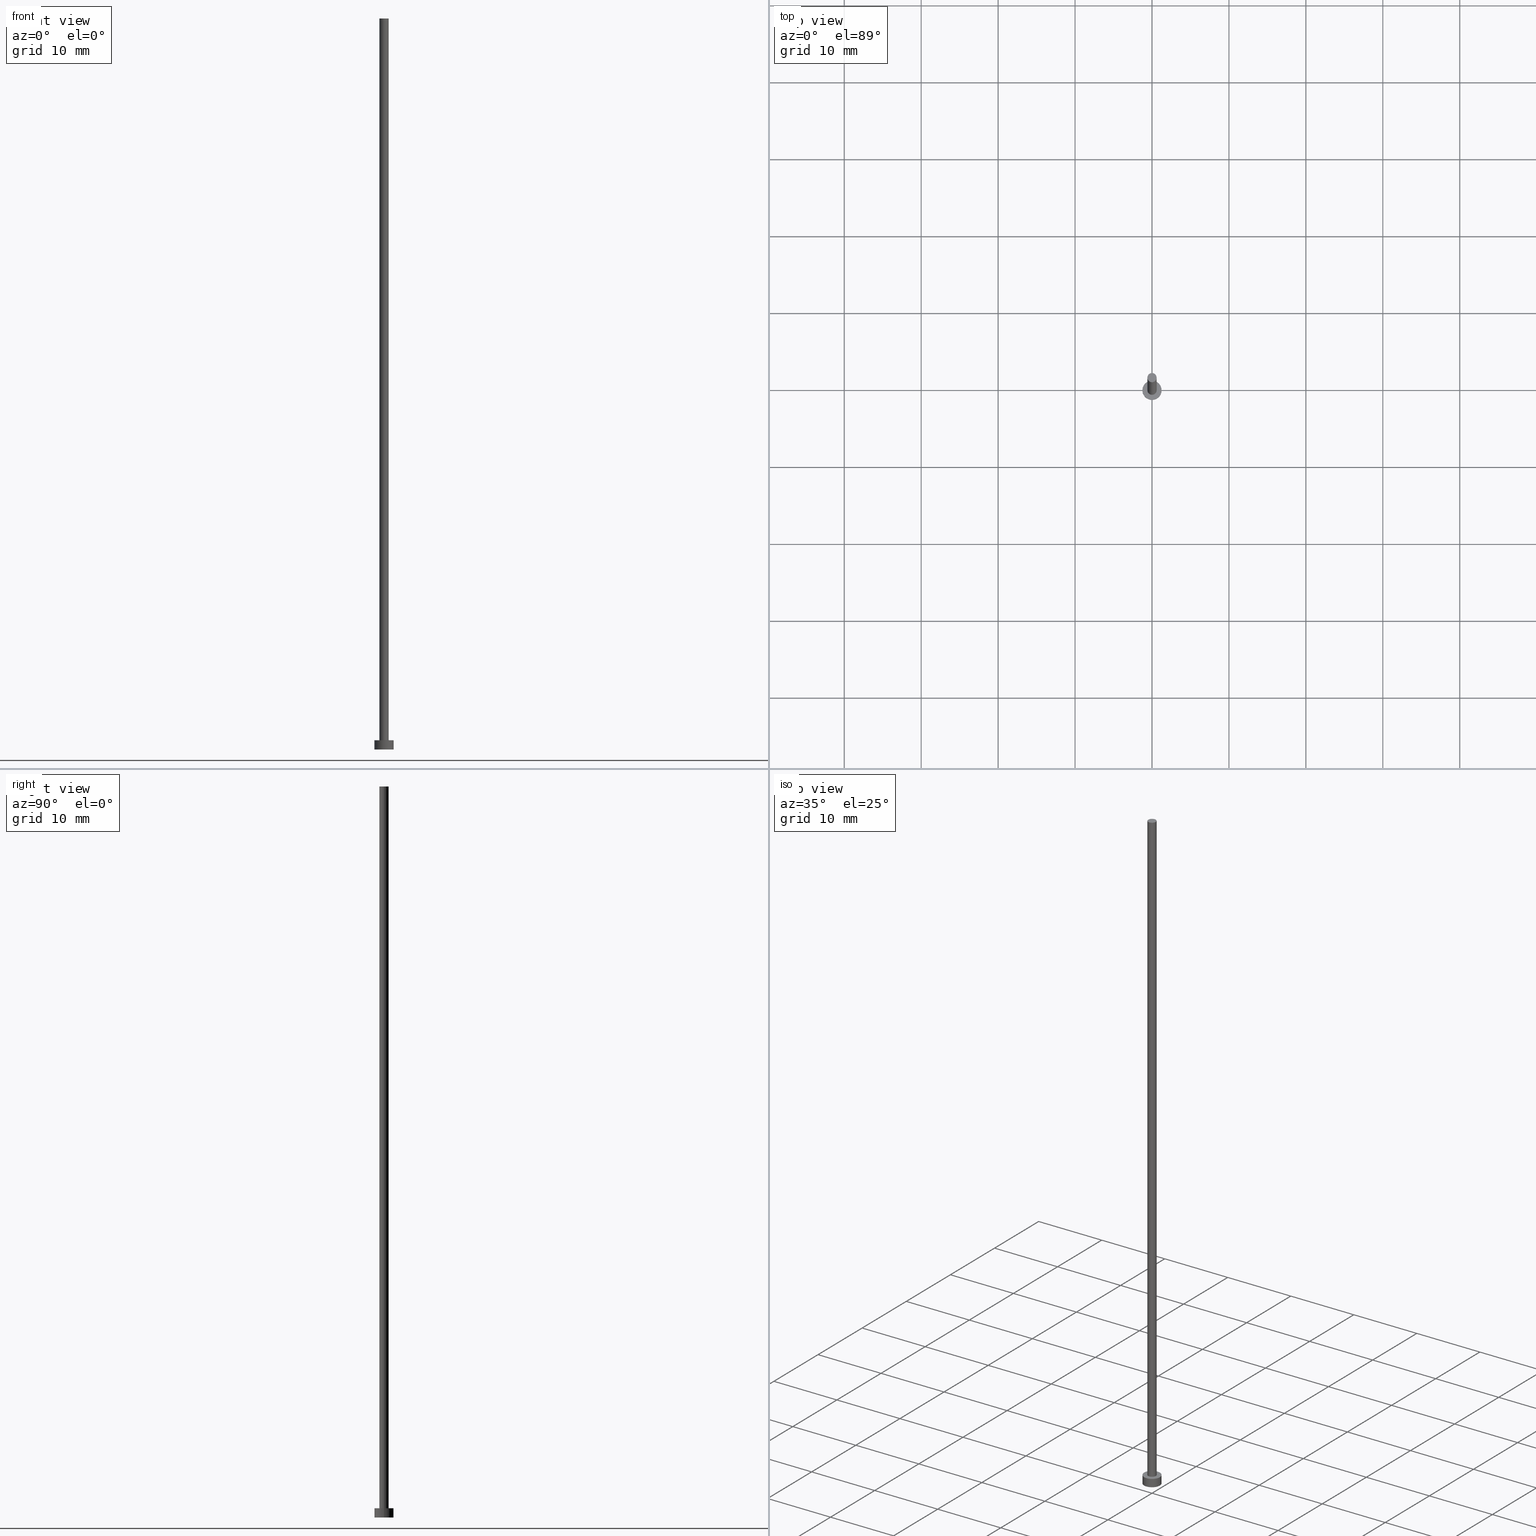
[diagram: canonical four-view strip — front | top / right | iso, engineering-drawing reading convention]
A machine part, canonical four-view strip (front | top / right | iso — engineering-drawing reading convention). The complete STEP part file that produces these views, byte-faithful:
ISO-10303-21;
HEADER;
FILE_DESCRIPTION (( 'STEP AP203' ),
    '1' );
FILE_NAME ('b17c.STEP',
    '2023-09-09T13:15:18',
    ( '' ),
    ( '' ),
    'SwSTEP 2.0',
    'SolidWorks 2019',
    '' );
FILE_SCHEMA (( 'CONFIG_CONTROL_DESIGN' ));
ENDSEC;

DATA;
#1 = CC_DESIGN_APPROVAL ( #51, ( #58 ) ) ;
#2 = APPROVAL ( #142, 'NEUR�EN�' ) ;
#3 = CARTESIAN_POINT ( 'NONE',  ( -0.5999999999999999778, 0.000000000000000000, 95.00000000000000000 ) ) ;
#4 = DIRECTION ( 'NONE',  ( 0.000000000000000000, 0.000000000000000000, 1.000000000000000000 ) ) ;
#5 = AXIS2_PLACEMENT_3D ( 'NONE', #234, #158, #54 ) ;
#6 = EDGE_CURVE ( 'NONE', #240, #174, #118, .T. ) ;
#7 = DIRECTION ( 'NONE',  ( 1.000000000000000000, 0.000000000000000000, -0.000000000000000000 ) ) ;
#8 = VERTEX_POINT ( 'NONE', #66 ) ;
#9 = CYLINDRICAL_SURFACE ( 'NONE', #42, 1.250000000000000000 ) ;
#10 = EDGE_LOOP ( 'NONE', ( #55, #75 ) ) ;
#11 = PERSON_AND_ORGANIZATION ( #202, #145 ) ;
#12 = APPROVAL_ROLE ( '' ) ;
#13 = LOCAL_TIME ( 15, 15, 18.00000000000000000, #143 ) ;
#14 = CALENDAR_DATE ( 2023, 9, 9 ) ;
#15 = CC_DESIGN_PERSON_AND_ORGANIZATION_ASSIGNMENT ( #194, #20, ( #93 ) ) ;
#16 = ORIENTED_EDGE ( 'NONE', *, *, #45, .F. ) ;
#17 = CALENDAR_DATE ( 2023, 9, 9 ) ;
#18 = CIRCLE ( 'NONE', #171, 0.5999999999999999778 ) ;
#19 = AXIS2_PLACEMENT_3D ( 'NONE', #91, #4, #201 ) ;
#20 = PERSON_AND_ORGANIZATION_ROLE ( 'creator' ) ;
#21 = ORIENTED_EDGE ( 'NONE', *, *, #6, .F. ) ;
#22 = APPROVAL_STATUS ( 'not_yet_approved' ) ;
#23 = DIRECTION ( 'NONE',  ( 0.000000000000000000, 0.000000000000000000, 1.000000000000000000 ) ) ;
#24 = APPROVAL ( #222, 'NEUR�EN�' ) ;
#25 = DIRECTION ( 'NONE',  ( 1.000000000000000000, 0.000000000000000000, -0.000000000000000000 ) ) ;
#26 = SHAPE_DEFINITION_REPRESENTATION ( #221, #128 ) ;
#27 = CARTESIAN_POINT ( 'NONE',  ( 0.000000000000000000, 0.000000000000000000, 1.199999999999999956 ) ) ;
#28 = DIRECTION ( 'NONE',  ( 1.000000000000000000, 0.000000000000000000, 0.000000000000000000 ) ) ;
#29 = CARTESIAN_POINT ( 'NONE',  ( 1.250000000000000000, 1.530808498934191571E-16, 1.199999999999999956 ) ) ;
#30 = CIRCLE ( 'NONE', #110, 0.5999999999999999778 ) ;
#31 = CARTESIAN_POINT ( 'NONE',  ( 0.000000000000000000, 0.000000000000000000, 1.199999999999999956 ) ) ;
#32 = ORIENTED_EDGE ( 'NONE', *, *, #205, .T. ) ;
#33 = APPLICATION_PROTOCOL_DEFINITION ( 'international standard', 'config_control_design', 1994, #131 ) ;
#34 = VERTEX_POINT ( 'NONE', #229 ) ;
#35 = PERSON_AND_ORGANIZATION ( #202, #145 ) ;
#36 = MANIFOLD_SOLID_BREP ( 'P�idat vysunut�m3', #243 ) ;
#37 = CC_DESIGN_PERSON_AND_ORGANIZATION_ASSIGNMENT ( #191, #100, ( #53 ) ) ;
#38 = EDGE_LOOP ( 'NONE', ( #134, #207, #173, #175 ) ) ;
#39 = APPROVAL_DATE_TIME ( #177, #24 ) ;
#40 = ORIENTED_EDGE ( 'NONE', *, *, #6, .T. ) ;
#41 = CIRCLE ( 'NONE', #178, 1.250000000000000000 ) ;
#42 = AXIS2_PLACEMENT_3D ( 'NONE', #154, #74, #49 ) ;
#43 = CARTESIAN_POINT ( 'NONE',  ( 0.5999999999999999778, 7.347880794884117764E-17, 95.00000000000000000 ) ) ;
#44 = CARTESIAN_POINT ( 'NONE',  ( 0.000000000000000000, 0.000000000000000000, 95.00000000000000000 ) ) ;
#45 = EDGE_CURVE ( 'NONE', #252, #226, #147, .T. ) ;
#46 = APPROVAL_DATE_TIME ( #215, #51 ) ;
#47 = DIRECTION ( 'NONE',  ( 1.000000000000000000, 0.000000000000000000, 0.000000000000000000 ) ) ;
#48 = EDGE_CURVE ( 'NONE', #164, #8, #213, .T. ) ;
#49 = DIRECTION ( 'NONE',  ( -1.000000000000000000, 0.000000000000000000, 0.000000000000000000 ) ) ;
#50 = DIRECTION ( 'NONE',  ( 0.000000000000000000, 0.000000000000000000, 1.000000000000000000 ) ) ;
#51 = APPROVAL ( #22, 'NEUR�EN�' ) ;
#52 = CARTESIAN_POINT ( 'NONE',  ( 0.000000000000000000, 0.000000000000000000, 0.000000000000000000 ) ) ;
#53 = PRODUCT_DEFINITION ( 'NEZN�M�', '', #93, #69 ) ;
#54 = DIRECTION ( 'NONE',  ( 1.000000000000000000, 0.000000000000000000, 0.000000000000000000 ) ) ;
#55 = ORIENTED_EDGE ( 'NONE', *, *, #96, .T. ) ;
#56 = CC_DESIGN_APPROVAL ( #24, ( #53 ) ) ;
#57 = VERTEX_POINT ( 'NONE', #248 ) ;
#58 = SECURITY_CLASSIFICATION ( '', '', #160 ) ;
#59 = ADVANCED_FACE ( 'NONE', ( #124 ), #251, .T. ) ;
#60 = ORIENTED_EDGE ( 'NONE', *, *, #120, .F. ) ;
#61 = CARTESIAN_POINT ( 'NONE',  ( 0.000000000000000000, 0.000000000000000000, 0.000000000000000000 ) ) ;
#62 = PRODUCT ( 'b17c', 'b17c', '', ( #94 ) ) ;
#63 = CALENDAR_DATE ( 2023, 9, 9 ) ;
#64 = DIRECTION ( 'NONE',  ( 1.000000000000000000, 0.000000000000000000, 0.000000000000000000 ) ) ;
#65 = DATE_AND_TIME ( #106, #13 ) ;
#66 = CARTESIAN_POINT ( 'NONE',  ( -1.250000000000000000, 0.000000000000000000, 1.199999999999999956 ) ) ;
#67 = ORIENTED_EDGE ( 'NONE', *, *, #96, .F. ) ;
#68 = CARTESIAN_POINT ( 'NONE',  ( 0.000000000000000000, 0.000000000000000000, 1.199999999999999956 ) ) ;
#69 = DESIGN_CONTEXT ( 'detailed design', #131, 'design' ) ;
#70 = CIRCLE ( 'NONE', #19, 1.250000000000000000 ) ;
#71 = DIRECTION ( 'NONE',  ( -1.000000000000000000, 0.000000000000000000, 0.000000000000000000 ) ) ;
#72 = FACE_OUTER_BOUND ( 'NONE', #77, .T. ) ;
#73 =( LENGTH_UNIT ( ) NAMED_UNIT ( * ) SI_UNIT ( .MILLI., .METRE. ) );
#74 = DIRECTION ( 'NONE',  ( -0.000000000000000000, -0.000000000000000000, -1.000000000000000000 ) ) ;
#75 = ORIENTED_EDGE ( 'NONE', *, *, #48, .T. ) ;
#76 =( GEOMETRIC_REPRESENTATION_CONTEXT ( 3 ) GLOBAL_UNCERTAINTY_ASSIGNED_CONTEXT ( ( #253 ) ) GLOBAL_UNIT_ASSIGNED_CONTEXT ( ( #73, #114, #165 ) ) REPRESENTATION_CONTEXT ( 'NONE', 'WORKASPACE' ) );
#77 = EDGE_LOOP ( 'NONE', ( #117, #159 ) ) ;
#78 = ORIENTED_EDGE ( 'NONE', *, *, #242, .T. ) ;
#79 = EDGE_LOOP ( 'NONE', ( #183, #21 ) ) ;
#80 = PERSON_AND_ORGANIZATION_ROLE ( 'design_owner' ) ;
#81 = APPROVAL_PERSON_ORGANIZATION ( #148, #2, #228 ) ;
#82 = EDGE_LOOP ( 'NONE', ( #97, #137, #40, #193 ) ) ;
#83 = PERSON_AND_ORGANIZATION ( #202, #145 ) ;
#84 = CALENDAR_DATE ( 2023, 9, 9 ) ;
#85 = CC_DESIGN_PERSON_AND_ORGANIZATION_ASSIGNMENT ( #11, #80, ( #62 ) ) ;
#86 = DIRECTION ( 'NONE',  ( -0.000000000000000000, -0.000000000000000000, -1.000000000000000000 ) ) ;
#87 = AXIS2_PLACEMENT_3D ( 'NONE', #224, #203, #204 ) ;
#88 = LINE ( 'NONE', #195, #151 ) ;
#89 = CARTESIAN_POINT ( 'NONE',  ( 0.000000000000000000, 0.000000000000000000, 1.199999999999999956 ) ) ;
#90 = CARTESIAN_POINT ( 'NONE',  ( 0.5999999999999999778, 7.347880794884117764E-17, 95.00000000000000000 ) ) ;
#91 = CARTESIAN_POINT ( 'NONE',  ( 0.000000000000000000, 0.000000000000000000, 0.000000000000000000 ) ) ;
#92 = AXIS2_PLACEMENT_3D ( 'NONE', #31, #186, #71 ) ;
#93 = PRODUCT_DEFINITION_FORMATION_WITH_SPECIFIED_SOURCE ( 'LIBOVOLN�', '', #62, .NOT_KNOWN. ) ;
#94 = MECHANICAL_CONTEXT ( 'NONE', #122, 'mechanical' ) ;
#95 = DIRECTION ( 'NONE',  ( -0.000000000000000000, -0.000000000000000000, -1.000000000000000000 ) ) ;
#96 = EDGE_CURVE ( 'NONE', #8, #164, #41, .T. ) ;
#97 = ORIENTED_EDGE ( 'NONE', *, *, #48, .F. ) ;
#98 = CARTESIAN_POINT ( 'NONE',  ( 1.250000000000000000, 1.530808498934191571E-16, 0.000000000000000000 ) ) ;
#99 = ORIENTED_EDGE ( 'NONE', *, *, #115, .T. ) ;
#100 = PERSON_AND_ORGANIZATION_ROLE ( 'creator' ) ;
#101 = APPROVAL_DATE_TIME ( #162, #2 ) ;
#102 = PERSON_AND_ORGANIZATION ( #202, #145 ) ;
#103 = DIRECTION ( 'NONE',  ( -0.000000000000000000, -0.000000000000000000, -1.000000000000000000 ) ) ;
#104 = ADVANCED_FACE ( 'NONE', ( #125, #150 ), #152, .T. ) ;
#105 = APPROVAL_ROLE ( '' ) ;
#106 = CALENDAR_DATE ( 2023, 9, 9 ) ;
#107 = EDGE_CURVE ( 'NONE', #164, #240, #88, .T. ) ;
#108 = EDGE_LOOP ( 'NONE', ( #236, #67, #99, #245 ) ) ;
#109 = PLANE ( 'NONE',  #185 ) ;
#110 = AXIS2_PLACEMENT_3D ( 'NONE', #161, #163, #64 ) ;
#111 = LOCAL_TIME ( 15, 15, 18.00000000000000000, #141 ) ;
#112 = CC_DESIGN_DATE_AND_TIME_ASSIGNMENT ( #244, #211, ( #53 ) ) ;
#113 = DIRECTION ( 'NONE',  ( 1.000000000000000000, 0.000000000000000000, -0.000000000000000000 ) ) ;
#114 =( NAMED_UNIT ( * ) PLANE_ANGLE_UNIT ( ) SI_UNIT ( $, .RADIAN. ) );
#115 = EDGE_CURVE ( 'NONE', #8, #174, #179, .T. ) ;
#116 = FACE_OUTER_BOUND ( 'NONE', #82, .T. ) ;
#117 = ORIENTED_EDGE ( 'NONE', *, *, #176, .T. ) ;
#118 = CIRCLE ( 'NONE', #170, 1.250000000000000000 ) ;
#119 = LOCAL_TIME ( 15, 15, 18.00000000000000000, #212 ) ;
#120 = EDGE_CURVE ( 'NONE', #226, #57, #30, .T. ) ;
#121 = DIRECTION ( 'NONE',  ( -0.000000000000000000, -0.000000000000000000, -1.000000000000000000 ) ) ;
#122 = APPLICATION_CONTEXT ( 'configuration controlled 3d designs of mechanical parts and assemblies' ) ;
#123 = DATE_TIME_ROLE ( 'classification_date' ) ;
#124 = FACE_OUTER_BOUND ( 'NONE', #38, .T. ) ;
#125 = FACE_BOUND ( 'NONE', #254, .T. ) ;
#126 = LINE ( 'NONE', #3, #208 ) ;
#127 = ADVANCED_FACE ( 'NONE', ( #216 ), #172, .T. ) ;
#128 = ADVANCED_BREP_SHAPE_REPRESENTATION ( 'b17c', ( #36, #87 ), #76 ) ;
#129 = CC_DESIGN_APPROVAL ( #2, ( #93 ) ) ;
#130 = DIRECTION ( 'NONE',  ( -1.000000000000000000, 0.000000000000000000, 0.000000000000000000 ) ) ;
#131 = APPLICATION_CONTEXT ( 'configuration controlled 3d designs of mechanical parts and assemblies' ) ;
#132 = FACE_OUTER_BOUND ( 'NONE', #108, .T. ) ;
#133 = DIRECTION ( 'NONE',  ( 0.000000000000000000, 0.000000000000000000, 1.000000000000000000 ) ) ;
#134 = ORIENTED_EDGE ( 'NONE', *, *, #225, .F. ) ;
#135 = AXIS2_PLACEMENT_3D ( 'NONE', #89, #231, #166 ) ;
#136 = APPROVAL_PERSON_ORGANIZATION ( #196, #51, #105 ) ;
#137 = ORIENTED_EDGE ( 'NONE', *, *, #107, .T. ) ;
#138 = CARTESIAN_POINT ( 'NONE',  ( 0.5999999999999999778, 7.347880794884117764E-17, 1.199999999999999956 ) ) ;
#139 = CC_DESIGN_PERSON_AND_ORGANIZATION_ASSIGNMENT ( #83, #230, ( #58 ) ) ;
#140 = APPROVAL_PERSON_ORGANIZATION ( #35, #24, #12 ) ;
#141 = COORDINATED_UNIVERSAL_TIME_OFFSET ( 1, 0, .AHEAD. ) ;
#142 = APPROVAL_STATUS ( 'not_yet_approved' ) ;
#143 = COORDINATED_UNIVERSAL_TIME_OFFSET ( 1, 0, .AHEAD. ) ;
#144 = AXIS2_PLACEMENT_3D ( 'NONE', #219, #95, #130 ) ;
#145 = ORGANIZATION ( 'NEUR�EN�', 'NEUR�EN�', '' ) ;
#146 = CC_DESIGN_SECURITY_CLASSIFICATION ( #58, ( #93 ) ) ;
#147 = LINE ( 'NONE', #43, #197 ) ;
#148 = PERSON_AND_ORGANIZATION ( #202, #145 ) ;
#149 = CC_DESIGN_DATE_AND_TIME_ASSIGNMENT ( #65, #123, ( #58 ) ) ;
#150 = FACE_OUTER_BOUND ( 'NONE', #10, .T. ) ;
#151 = VECTOR ( 'NONE', #103, 1000.000000000000000 ) ;
#152 = PLANE ( 'NONE',  #187 ) ;
#153 = DIRECTION ( 'NONE',  ( 0.000000000000000000, 0.000000000000000000, 1.000000000000000000 ) ) ;
#154 = CARTESIAN_POINT ( 'NONE',  ( 0.000000000000000000, 0.000000000000000000, 1.199999999999999956 ) ) ;
#155 = CARTESIAN_POINT ( 'NONE',  ( 0.000000000000000000, 0.000000000000000000, 95.00000000000000000 ) ) ;
#156 = CARTESIAN_POINT ( 'NONE',  ( -1.250000000000000000, 0.000000000000000000, 0.000000000000000000 ) ) ;
#157 = ORIENTED_EDGE ( 'NONE', *, *, #242, .F. ) ;
#158 = DIRECTION ( 'NONE',  ( 0.000000000000000000, 0.000000000000000000, 1.000000000000000000 ) ) ;
#159 = ORIENTED_EDGE ( 'NONE', *, *, #225, .T. ) ;
#160 = SECURITY_CLASSIFICATION_LEVEL ( 'unclassified' ) ;
#161 = CARTESIAN_POINT ( 'NONE',  ( 0.000000000000000000, 0.000000000000000000, 1.199999999999999956 ) ) ;
#162 = DATE_AND_TIME ( #17, #119 ) ;
#163 = DIRECTION ( 'NONE',  ( 0.000000000000000000, 0.000000000000000000, 1.000000000000000000 ) ) ;
#164 = VERTEX_POINT ( 'NONE', #29 ) ;
#165 =( NAMED_UNIT ( * ) SI_UNIT ( $, .STERADIAN. ) SOLID_ANGLE_UNIT ( ) );
#166 = DIRECTION ( 'NONE',  ( 1.000000000000000000, 0.000000000000000000, 0.000000000000000000 ) ) ;
#167 = EDGE_CURVE ( 'NONE', #174, #240, #70, .T. ) ;
#168 = DIRECTION ( 'NONE',  ( 0.000000000000000000, 0.000000000000000000, 1.000000000000000000 ) ) ;
#169 = DIRECTION ( 'NONE',  ( -0.000000000000000000, -0.000000000000000000, -1.000000000000000000 ) ) ;
#170 = AXIS2_PLACEMENT_3D ( 'NONE', #61, #182, #47 ) ;
#171 = AXIS2_PLACEMENT_3D ( 'NONE', #27, #168, #233 ) ;
#172 = CYLINDRICAL_SURFACE ( 'NONE', #144, 0.5999999999999999778 ) ;
#173 = ORIENTED_EDGE ( 'NONE', *, *, #120, .T. ) ;
#174 = VERTEX_POINT ( 'NONE', #156 ) ;
#175 = ORIENTED_EDGE ( 'NONE', *, *, #205, .F. ) ;
#176 = EDGE_CURVE ( 'NONE', #34, #252, #255, .T. ) ;
#177 = DATE_AND_TIME ( #14, #218 ) ;
#178 = AXIS2_PLACEMENT_3D ( 'NONE', #68, #23, #198 ) ;
#179 = LINE ( 'NONE', #250, #200 ) ;
#180 = CARTESIAN_POINT ( 'NONE',  ( 0.000000000000000000, 0.000000000000000000, 1.199999999999999956 ) ) ;
#181 = CC_DESIGN_PERSON_AND_ORGANIZATION_ASSIGNMENT ( #102, #247, ( #93 ) ) ;
#182 = DIRECTION ( 'NONE',  ( 0.000000000000000000, 0.000000000000000000, 1.000000000000000000 ) ) ;
#183 = ORIENTED_EDGE ( 'NONE', *, *, #167, .F. ) ;
#184 = ADVANCED_FACE ( 'NONE', ( #188 ), #237, .F. ) ;
#185 = AXIS2_PLACEMENT_3D ( 'NONE', #155, #50, #113 ) ;
#186 = DIRECTION ( 'NONE',  ( -0.000000000000000000, -0.000000000000000000, -1.000000000000000000 ) ) ;
#187 = AXIS2_PLACEMENT_3D ( 'NONE', #180, #153, #25 ) ;
#188 = FACE_OUTER_BOUND ( 'NONE', #79, .T. ) ;
#189 = ADVANCED_FACE ( 'NONE', ( #132 ), #223, .T. ) ;
#190 = AXIS2_PLACEMENT_3D ( 'NONE', #220, #133, #28 ) ;
#191 = PERSON_AND_ORGANIZATION ( #202, #145 ) ;
#192 = ADVANCED_FACE ( 'NONE', ( #116 ), #9, .T. ) ;
#193 = ORIENTED_EDGE ( 'NONE', *, *, #115, .F. ) ;
#194 = PERSON_AND_ORGANIZATION ( #202, #145 ) ;
#195 = CARTESIAN_POINT ( 'NONE',  ( 1.250000000000000000, 1.530808498934191571E-16, 1.199999999999999956 ) ) ;
#196 = PERSON_AND_ORGANIZATION ( #202, #145 ) ;
#197 = VECTOR ( 'NONE', #214, 1000.000000000000000 ) ;
#198 = DIRECTION ( 'NONE',  ( 1.000000000000000000, 0.000000000000000000, 0.000000000000000000 ) ) ;
#199 = PRODUCT_RELATED_PRODUCT_CATEGORY ( 'detail', '', ( #62 ) ) ;
#200 = VECTOR ( 'NONE', #86, 1000.000000000000000 ) ;
#201 = DIRECTION ( 'NONE',  ( 1.000000000000000000, 0.000000000000000000, 0.000000000000000000 ) ) ;
#202 = PERSON ( 'NEUR�EN�', 'NEUR�EN�', 'NEUR�EN�', ('NEUR�EN�'), ('NEUR�EN�'), ('NEUR�EN�') ) ;
#203 = DIRECTION ( 'NONE',  ( 0.000000000000000000, 0.000000000000000000, 1.000000000000000000 ) ) ;
#204 = DIRECTION ( 'NONE',  ( 1.000000000000000000, 0.000000000000000000, 0.000000000000000000 ) ) ;
#205 = EDGE_CURVE ( 'NONE', #34, #57, #126, .T. ) ;
#206 = APPLICATION_PROTOCOL_DEFINITION ( 'international standard', 'config_control_design', 1994, #122 ) ;
#207 = ORIENTED_EDGE ( 'NONE', *, *, #45, .T. ) ;
#208 = VECTOR ( 'NONE', #169, 1000.000000000000000 ) ;
#209 = COORDINATED_UNIVERSAL_TIME_OFFSET ( 1, 0, .AHEAD. ) ;
#210 = LOCAL_TIME ( 15, 15, 18.00000000000000000, #249 ) ;
#211 = DATE_TIME_ROLE ( 'creation_date' ) ;
#212 = COORDINATED_UNIVERSAL_TIME_OFFSET ( 1, 0, .AHEAD. ) ;
#213 = CIRCLE ( 'NONE', #135, 1.250000000000000000 ) ;
#214 = DIRECTION ( 'NONE',  ( -0.000000000000000000, -0.000000000000000000, -1.000000000000000000 ) ) ;
#215 = DATE_AND_TIME ( #84, #111 ) ;
#216 = FACE_OUTER_BOUND ( 'NONE', #238, .T. ) ;
#217 = AXIS2_PLACEMENT_3D ( 'NONE', #44, #121, #232 ) ;
#218 = LOCAL_TIME ( 15, 15, 18.00000000000000000, #209 ) ;
#219 = CARTESIAN_POINT ( 'NONE',  ( 0.000000000000000000, 0.000000000000000000, 95.00000000000000000 ) ) ;
#220 = CARTESIAN_POINT ( 'NONE',  ( 0.000000000000000000, 0.000000000000000000, 95.00000000000000000 ) ) ;
#221 = PRODUCT_DEFINITION_SHAPE ( 'NONE', 'NONE',  #53 ) ;
#222 = APPROVAL_STATUS ( 'not_yet_approved' ) ;
#223 = CYLINDRICAL_SURFACE ( 'NONE', #92, 1.250000000000000000 ) ;
#224 = CARTESIAN_POINT ( 'NONE',  ( 0.000000000000000000, 0.000000000000000000, 0.000000000000000000 ) ) ;
#225 = EDGE_CURVE ( 'NONE', #252, #34, #239, .T. ) ;
#226 = VERTEX_POINT ( 'NONE', #138 ) ;
#227 = AXIS2_PLACEMENT_3D ( 'NONE', #52, #235, #7 ) ;
#228 = APPROVAL_ROLE ( '' ) ;
#229 = CARTESIAN_POINT ( 'NONE',  ( -0.5999999999999999778, 0.000000000000000000, 95.00000000000000000 ) ) ;
#230 = PERSON_AND_ORGANIZATION_ROLE ( 'classification_officer' ) ;
#231 = DIRECTION ( 'NONE',  ( 0.000000000000000000, 0.000000000000000000, 1.000000000000000000 ) ) ;
#232 = DIRECTION ( 'NONE',  ( -1.000000000000000000, 0.000000000000000000, 0.000000000000000000 ) ) ;
#233 = DIRECTION ( 'NONE',  ( 1.000000000000000000, 0.000000000000000000, 0.000000000000000000 ) ) ;
#234 = CARTESIAN_POINT ( 'NONE',  ( 0.000000000000000000, 0.000000000000000000, 95.00000000000000000 ) ) ;
#235 = DIRECTION ( 'NONE',  ( 0.000000000000000000, 0.000000000000000000, 1.000000000000000000 ) ) ;
#236 = ORIENTED_EDGE ( 'NONE', *, *, #107, .F. ) ;
#237 = PLANE ( 'NONE',  #227 ) ;
#238 = EDGE_LOOP ( 'NONE', ( #16, #241, #32, #78 ) ) ;
#239 = CIRCLE ( 'NONE', #5, 0.5999999999999999778 ) ;
#240 = VERTEX_POINT ( 'NONE', #98 ) ;
#241 = ORIENTED_EDGE ( 'NONE', *, *, #176, .F. ) ;
#242 = EDGE_CURVE ( 'NONE', #57, #226, #18, .T. ) ;
#243 = CLOSED_SHELL ( 'NONE', ( #59, #192, #189, #104, #184, #127, #246 ) ) ;
#244 = DATE_AND_TIME ( #63, #210 ) ;
#245 = ORIENTED_EDGE ( 'NONE', *, *, #167, .T. ) ;
#246 = ADVANCED_FACE ( 'NONE', ( #72 ), #109, .T. ) ;
#247 = PERSON_AND_ORGANIZATION_ROLE ( 'design_supplier' ) ;
#248 = CARTESIAN_POINT ( 'NONE',  ( -0.5999999999999999778, 0.000000000000000000, 1.199999999999999956 ) ) ;
#249 = COORDINATED_UNIVERSAL_TIME_OFFSET ( 1, 0, .AHEAD. ) ;
#250 = CARTESIAN_POINT ( 'NONE',  ( -1.250000000000000000, 0.000000000000000000, 1.199999999999999956 ) ) ;
#251 = CYLINDRICAL_SURFACE ( 'NONE', #217, 0.5999999999999999778 ) ;
#252 = VERTEX_POINT ( 'NONE', #90 ) ;
#253 = UNCERTAINTY_MEASURE_WITH_UNIT (LENGTH_MEASURE( 1.000000000000000082E-05 ), #73, 'distance_accuracy_value', 'NONE');
#254 = EDGE_LOOP ( 'NONE', ( #157, #60 ) ) ;
#255 = CIRCLE ( 'NONE', #190, 0.5999999999999999778 ) ;
ENDSEC;
END-ISO-10303-21;
